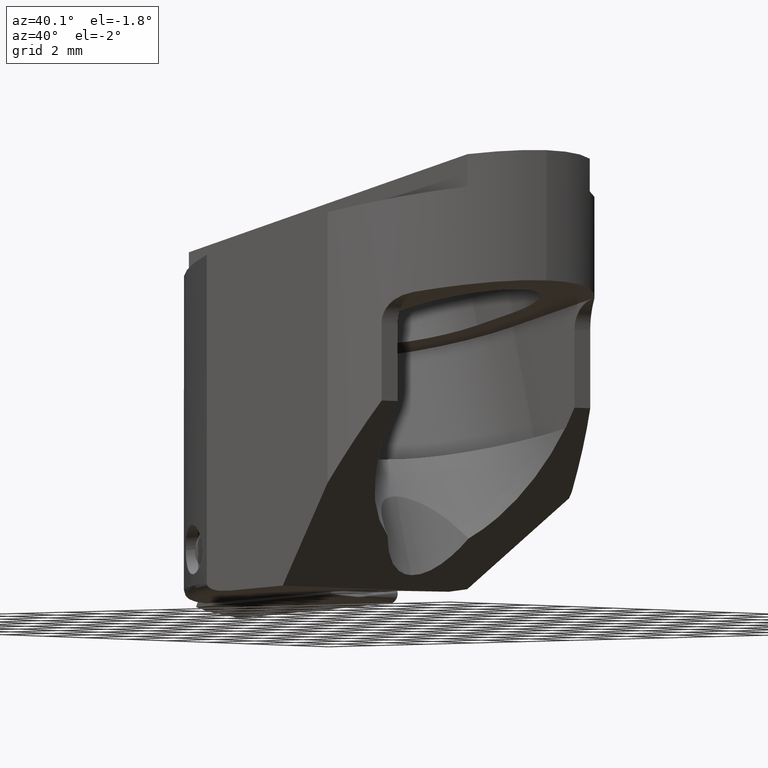
[diagram: clean part render]
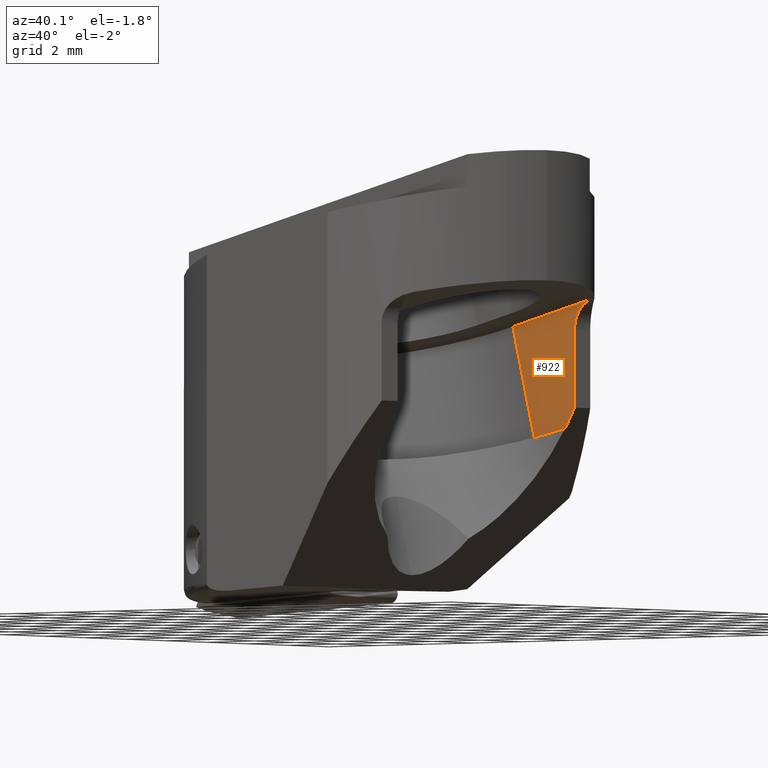
[diagram: same view with one face highlighted and labeled with its STEP entity id]
A machine part, auxiliary view. The second image highlights one B-rep face of the part: STEP entity #922.
In plain terms, the highlighted planar face has unit normal (0, 1, 0).
Its self-contained STEP definition (entity closure, byte-faithful):
#876=VERTEX_POINT('NONE',#2434);
#922=ADVANCED_FACE('NONE',(#2491),#2492,.F.);
#944=EDGE_CURVE('NONE',#1532,#876,#2518,.T.);
#948=EDGE_CURVE('NONE',#876,#1652,#2522,.T.);
#1062=EDGE_CURVE('NONE',#1532,#1724,#2642,.F.);
#1532=VERTEX_POINT('NONE',#3166);
#1582=VERTEX_POINT('NONE',#3221);
#1602=VERTEX_POINT('NONE',#3242);
#1652=VERTEX_POINT('NONE',#3296);
#1724=VERTEX_POINT('NONE',#3379);
#1878=EDGE_CURVE('NONE',#1652,#1582,#3550,.T.);
#1920=EDGE_CURVE('NONE',#1724,#1602,#3595,.F.);
#1936=EDGE_CURVE('NONE',#1582,#1602,#3612,.T.);
#2434=CARTESIAN_POINT('',(4.0,4.35,-7.99999999999999));
#2491=FACE_OUTER_BOUND('',#4239,.T.);
#2492=PLANE('',#4240);
#2518=LINE('',#4917,#4918);
#2522=LINE('',#4923,#4924);
#2642=LINE('',#5142,#5143);
#3166=CARTESIAN_POINT('',(3.62296057542221,4.35,-8.65305143982525));
#3221=CARTESIAN_POINT('',(4.75807810440034,4.35,-4.55676442473825));
#3242=CARTESIAN_POINT('',(1.45185407948745,4.35,-5.38109865782189));
#3296=CARTESIAN_POINT('',(4.0,4.35,-5.52706015101425));
#3379=CARTESIAN_POINT('',(2.3469650932062,4.35,-8.97119284504309));
#3550=CIRCLE('',#6441,1.0);
#3595=LINE('',#6499,#6500);
#3612=LINE('',#6524,#6525);
#4239=EDGE_LOOP('',(#7364,#7365,#7366,#7367,#7368,#7369));
#4240=AXIS2_PLACEMENT_3D('',#7370,#7371,#7372);
#4917=CARTESIAN_POINT('',(0.407674737162569,4.35,-14.2220898725476));
#4918=VECTOR('',#7407,1.0);
#4923=CARTESIAN_POINT('',(4.0,4.35,-8.48559642252154));
#4924=VECTOR('',#7408,1.0);
#5142=CARTESIAN_POINT('',(2.3469650932062,4.35,-8.97119284504309));
#5143=VECTOR('',#7513,1.0);
#6441=AXIS2_PLACEMENT_3D('',#8637,#8638,#8639);
#6499=CARTESIAN_POINT('',(2.3469650932062,4.35,-8.97119284504309));
#6500=VECTOR('',#8681,1.0);
#6524=CARTESIAN_POINT('',(1.45185407948745,4.35,-5.38109865782189));
#6525=VECTOR('',#8698,1.0);
#7364=ORIENTED_EDGE('',*,*,#944,.T.);
#7365=ORIENTED_EDGE('',*,*,#948,.T.);
#7366=ORIENTED_EDGE('',*,*,#1878,.T.);
#7367=ORIENTED_EDGE('',*,*,#1936,.T.);
#7368=ORIENTED_EDGE('',*,*,#1920,.F.);
#7369=ORIENTED_EDGE('',*,*,#1062,.F.);
#7370=CARTESIAN_POINT('',(2.3469650932062,4.35,-8.97119284504309));
#7371=DIRECTION('',(0.0,1.0,0.0));
#7372=DIRECTION('',(1.0,0.0,-1.22464679914735E-016));
#7407=DIRECTION('',(0.500000000000001,0.0,0.866025403784438));
#7408=DIRECTION('',(1.22464679914735E-016,0.0,1.0));
#7513=DIRECTION('',(0.970295726275998,0.0,0.241921895599661));
#8637=CARTESIAN_POINT('',(5.0,4.35,-5.52706015101425));
#8638=DIRECTION('',(-0.0,1.0,0.0));
#8639=DIRECTION('',(1.22464679914735E-016,0.0,1.0));
#8681=DIRECTION('',(0.24192189559966,0.0,-0.970295726275998));
#8698=DIRECTION('',(-0.970295726275998,0.0,-0.241921895599661));